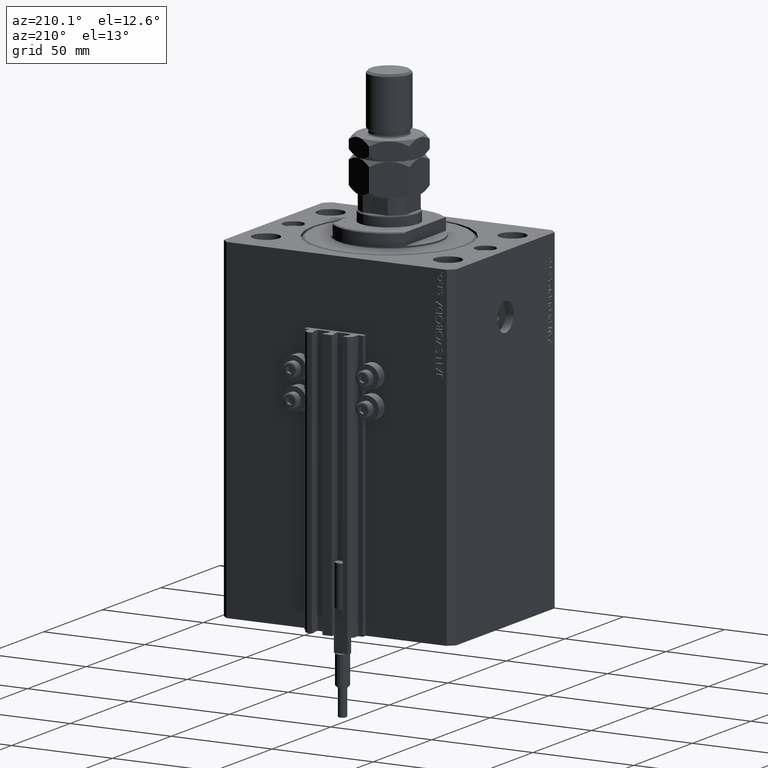
[diagram: clean part render]
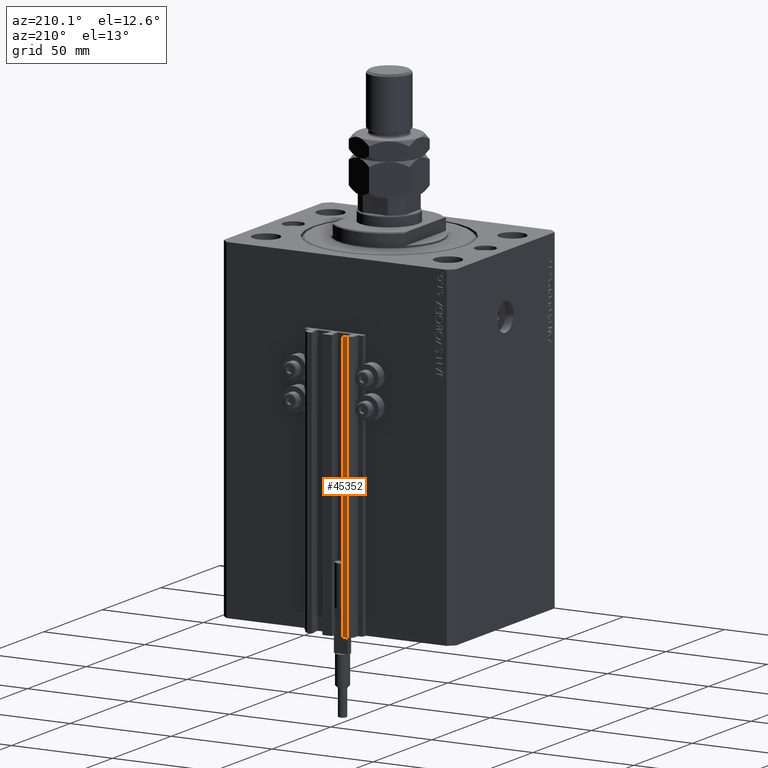
[diagram: same view with one face highlighted and labeled with its STEP entity id]
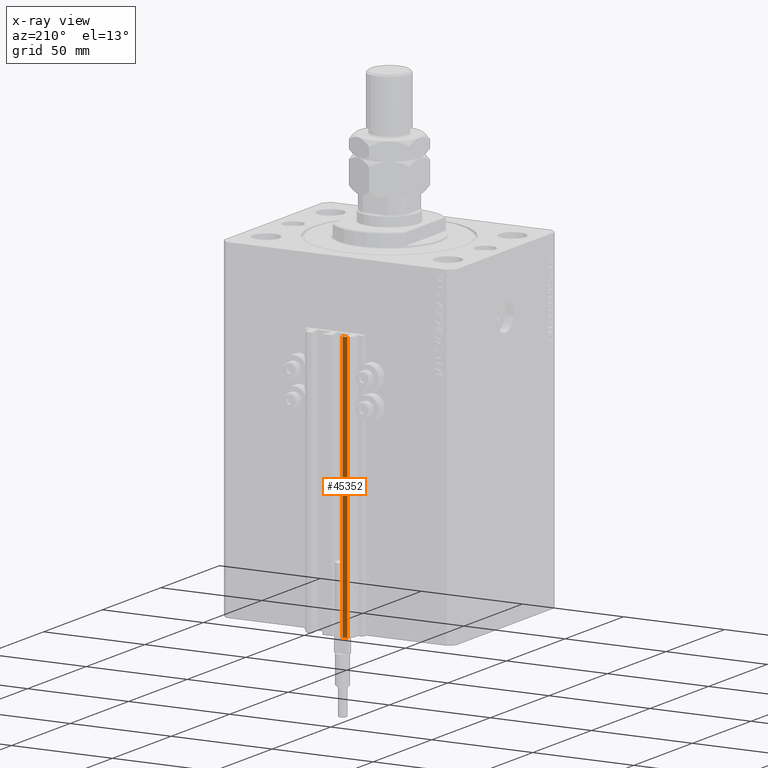
[diagram: x-ray of the same camera — body ghosted, the highlighted face saturated]
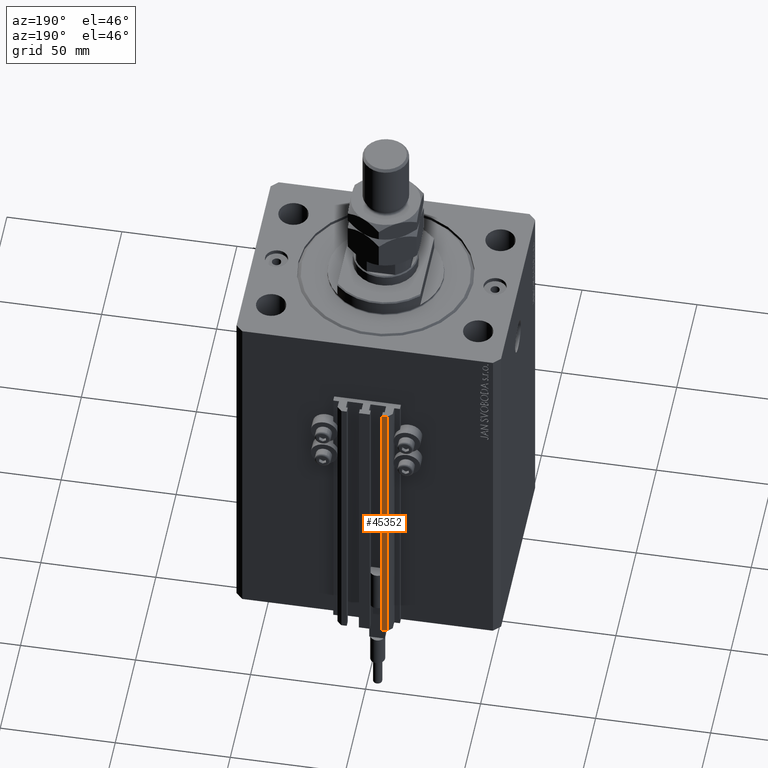
[diagram: same view with one face highlighted and labeled with its STEP entity id]
A machine part, auxiliary view. The second image highlights one B-rep face of the part: STEP entity #45352.
The next image is the same camera in x-ray: the body ghosted, the highlighted face saturated — about 0% of this face is hidden behind the body in this view.
A second angle (auxiliary view) of the same face is appended — the face is thin or edge-on in the first view.
In plain terms, the highlighted planar face has unit normal (0, 1, 0).
Its self-contained STEP definition (entity closure, byte-faithful):
#19 = EDGE_CURVE ( 'NONE', #34178, #15695, #10859, .T. ) ;
#209 = DIRECTION ( 'NONE',  ( 0.000000000000000000, 0.000000000000000000, 1.000000000000000000 ) ) ;
#1235 = LINE ( 'NONE', #23342, #28299 ) ;
#2244 = VECTOR ( 'NONE', #4388, 1000.000000000000000 ) ;
#4388 = DIRECTION ( 'NONE',  ( -1.000000000000000000, 0.000000000000000000, 0.000000000000000000 ) ) ;
#5830 = ORIENTED_EDGE ( 'NONE', *, *, #7771, .F. ) ;
#6395 = VERTEX_POINT ( 'NONE', #20230 ) ;
#7771 = EDGE_CURVE ( 'NONE', #39334, #6395, #1235, .T. ) ;
#9749 = DIRECTION ( 'NONE',  ( -1.000000000000000000, 0.000000000000000000, 0.000000000000000000 ) ) ;
#10859 = LINE ( 'NONE', #19113, #39346 ) ;
#15437 = LINE ( 'NONE', #15679, #2244 ) ;
#15679 = CARTESIAN_POINT ( 'NONE',  ( -7.650000000000002132, 52.99999999999999289, -165.0000000000000000 ) ) ;
#15695 = VERTEX_POINT ( 'NONE', #46770 ) ;
#18005 = LINE ( 'NONE', #25539, #26396 ) ;
#19113 = CARTESIAN_POINT ( 'NONE',  ( -10.00000000000000000, 52.99999999999999289, -165.0000000000000000 ) ) ;
#19935 = AXIS2_PLACEMENT_3D ( 'NONE', #22296, #45855, #209 ) ;
#20230 = CARTESIAN_POINT ( 'NONE',  ( -7.650000000000002132, 52.99999999999999289, -33.00000000000000000 ) ) ;
#22296 = CARTESIAN_POINT ( 'NONE',  ( -7.650000000000002132, 52.99999999999999289, -165.0000000000000000 ) ) ;
#22926 = ORIENTED_EDGE ( 'NONE', *, *, #19, .T. ) ;
#23342 = CARTESIAN_POINT ( 'NONE',  ( -7.650000000000002132, 52.99999999999999289, -165.0000000000000000 ) ) ;
#24561 = EDGE_CURVE ( 'NONE', #39334, #34178, #15437, .T. ) ;
#25539 = CARTESIAN_POINT ( 'NONE',  ( -7.650000000000002132, 52.99999999999999289, -33.00000000000000000 ) ) ;
#26294 = PLANE ( 'NONE',  #19935 ) ;
#26396 = VECTOR ( 'NONE', #9749, 1000.000000000000000 ) ;
#28299 = VECTOR ( 'NONE', #38873, 1000.000000000000000 ) ;
#28412 = ORIENTED_EDGE ( 'NONE', *, *, #36519, .F. ) ;
#34178 = VERTEX_POINT ( 'NONE', #46106 ) ;
#36519 = EDGE_CURVE ( 'NONE', #6395, #15695, #18005, .T. ) ;
#38330 = FACE_OUTER_BOUND ( 'NONE', #48734, .T. ) ;
#38873 = DIRECTION ( 'NONE',  ( 0.000000000000000000, 0.000000000000000000, 1.000000000000000000 ) ) ;
#39334 = VERTEX_POINT ( 'NONE', #44795 ) ;
#39346 = VECTOR ( 'NONE', #44963, 1000.000000000000000 ) ;
#44795 = CARTESIAN_POINT ( 'NONE',  ( -7.650000000000002132, 52.99999999999999289, -165.0000000000000000 ) ) ;
#44963 = DIRECTION ( 'NONE',  ( 0.000000000000000000, 0.000000000000000000, 1.000000000000000000 ) ) ;
#45352 = ADVANCED_FACE ( 'NONE', ( #38330 ), #26294, .T. ) ;
#45855 = DIRECTION ( 'NONE',  ( 0.000000000000000000, 1.000000000000000000, -0.000000000000000000 ) ) ;
#46106 = CARTESIAN_POINT ( 'NONE',  ( -10.00000000000000000, 52.99999999999999289, -165.0000000000000000 ) ) ;
#46770 = CARTESIAN_POINT ( 'NONE',  ( -10.00000000000000000, 52.99999999999999289, -33.00000000000000000 ) ) ;
#48734 = EDGE_LOOP ( 'NONE', ( #28412, #5830, #49483, #22926 ) ) ;
#49483 = ORIENTED_EDGE ( 'NONE', *, *, #24561, .T. ) ;